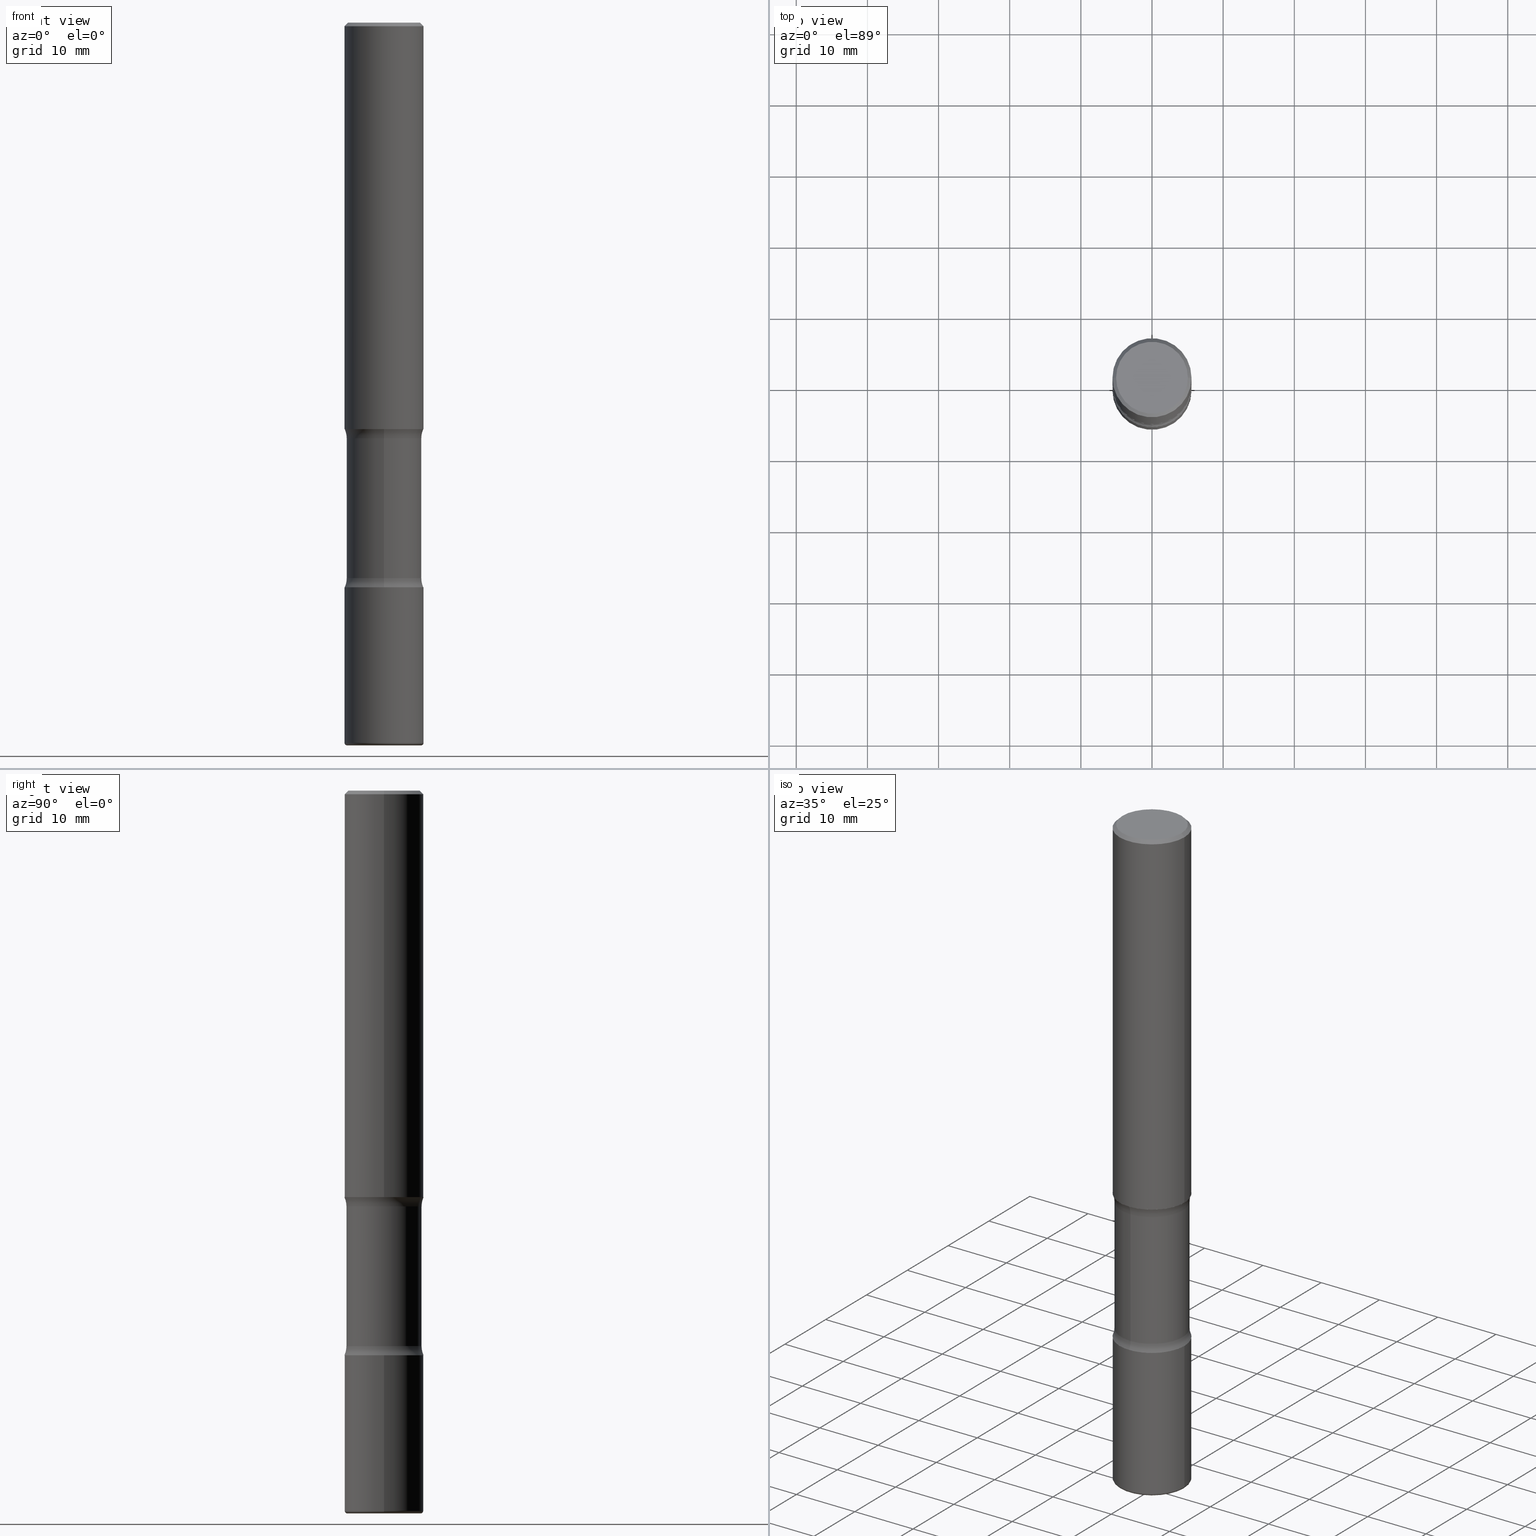
[diagram: canonical four-view strip — front | top / right | iso, engineering-drawing reading convention]
A machine part, canonical four-view strip (front | top / right | iso — engineering-drawing reading convention). The complete STEP part file that produces these views, byte-faithful:
ISO-10303-21;
HEADER;
FILE_DESCRIPTION (( 'STEP AP203' ),
    '1' );
FILE_NAME ('37860.STEP',
    '2024-03-02T00:51:16',
    ( '' ),
    ( '' ),
    'SwSTEP 2.0',
    'SolidWorks 2023',
    '' );
FILE_SCHEMA (( 'CONFIG_CONTROL_DESIGN' ));
ENDSEC;

DATA;
#1 = ORIENTED_EDGE ( 'NONE', *, *, #491, .F. ) ;
#2 = VERTEX_POINT ( 'NONE', #367 ) ;
#3 = AXIS2_PLACEMENT_3D ( 'NONE', #550, #346, #181 ) ;
#4 = CC_DESIGN_APPROVAL ( #130, ( #373 ) ) ;
#5 = DIRECTION ( 'NONE',  ( 1.000000000000000000, -6.982962677686265922E-15, 0.000000000000000000 ) ) ;
#6 = DIRECTION ( 'NONE',  ( 2.445468806185136597E-29, -3.491481338843145583E-15, -1.000000000000000000 ) ) ;
#7 = CARTESIAN_POINT ( 'NONE',  ( -1.463215588587155192E-15, -0.2078125000000081712, -2.301134588037354156 ) ) ;
#8 = LINE ( 'NONE', #347, #262 ) ;
#9 = CIRCLE ( 'NONE', #200, 0.2187499999999998890 ) ;
#10 = AXIS2_PLACEMENT_3D ( 'NONE', #358, #442, #151 ) ;
#11 = EDGE_CURVE ( 'NONE', #456, #557, #138, .T. ) ;
#12 = PRODUCT ( '37860', '37860', '', ( #100 ) ) ;
#13 = DIRECTION ( 'NONE',  ( -2.445468806185136877E-29, 3.491481338843145188E-15, 1.000000000000000000 ) ) ;
#14 = CARTESIAN_POINT ( 'NONE',  ( 7.642090019328550744E-29, -1.091087918388482645E-14, -3.124999999999999112 ) ) ;
#15 = ORIENTED_EDGE ( 'NONE', *, *, #327, .F. ) ;
#16 = DIRECTION ( 'NONE',  ( -1.000000000000000000, 6.982962677686265922E-15, -4.883557194083112340E-29 ) ) ;
#17 = PERSON ( 'UNSPECIFIED', 'UNSPECIFIED', 'UNSPECIFIED', ('UNSPECIFIED'), ('UNSPECIFIED'), ('UNSPECIFIED') ) ;
#18 = DIRECTION ( 'NONE',  ( 2.542508401758147997E-29, -3.352515114831814446E-15, -1.000000000000000000 ) ) ;
#19 = DATE_AND_TIME ( #237, #300 ) ;
#20 = CIRCLE ( 'NONE', #468, 0.01500000000000035159 ) ;
#21 = CIRCLE ( 'NONE', #147, 0.2187500000000000833 ) ;
#22 = DIRECTION ( 'NONE',  ( 1.000000000000000000, -6.982962677686269077E-15, 0.000000000000000000 ) ) ;
#23 = ORIENTED_EDGE ( 'NONE', *, *, #472, .T. ) ;
#24 = PERSON_AND_ORGANIZATION_ROLE ( 'design_owner' ) ;
#25 = VERTEX_POINT ( 'NONE', #35 ) ;
#26 = CARTESIAN_POINT ( 'NONE',  ( 0.2187499999999998890, -1.570563563789384841E-15, -0.02000000000000006981 ) ) ;
#27 = VERTEX_POINT ( 'NONE', #500 ) ;
#28 = LINE ( 'NONE', #26, #390 ) ;
#29 = CIRCLE ( 'NONE', #539, 0.1987499999999998157 ) ;
#30 = AXIS2_PLACEMENT_3D ( 'NONE', #284, #115, #233 ) ;
#31 = ORIENTED_EDGE ( 'NONE', *, *, #90, .T. ) ;
#32 = ORIENTED_EDGE ( 'NONE', *, *, #77, .F. ) ;
#33 = DIRECTION ( 'NONE',  ( -2.445468806185136597E-29, 3.491481338843145583E-15, 1.000000000000000000 ) ) ;
#34 = PERSON_AND_ORGANIZATION_ROLE ( 'classification_officer' ) ;
#35 = CARTESIAN_POINT ( 'NONE',  ( -0.2037500000000001810, -1.243871771603804148E-14, -4.000000000000000000 ) ) ;
#36 = PERSON_AND_ORGANIZATION ( #17, #192 ) ;
#37 = AXIS2_PLACEMENT_3D ( 'NONE', #459, #33, #255 ) ;
#38 = TOROIDAL_SURFACE ( 'NONE', #10, 0.3328125000000000666, 0.1250000000000000555 ) ;
#39 = ORIENTED_EDGE ( 'NONE', *, *, #544, .F. ) ;
#40 = DIRECTION ( 'NONE',  ( 1.000000000000000000, -6.860497997771530774E-15, 4.842500725038393941E-29 ) ) ;
#41 = ORIENTED_EDGE ( 'NONE', *, *, #449, .F. ) ;
#42 = CYLINDRICAL_SURFACE ( 'NONE', #352, 0.2187500000000001665 ) ;
#43 = PLANE ( 'NONE',  #337 ) ;
#44 = CONICAL_SURFACE ( 'NONE', #528, 0.2187499999999998890, 0.7853981633974480570 ) ;
#45 = DIRECTION ( 'NONE',  ( -2.445468806185136597E-29, 3.491481338843145583E-15, 1.000000000000000000 ) ) ;
#46 = CIRCLE ( 'NONE', #221, 0.2187500000000001943 ) ;
#47 = APPROVAL_PERSON_ORGANIZATION ( #273, #130, #224 ) ;
#48 = DIRECTION ( 'NONE',  ( 2.542508401758147997E-29, -3.352515114831814446E-15, -1.000000000000000000 ) ) ;
#49 = DIRECTION ( 'NONE',  ( 1.000000000000000000, -6.982962677686265922E-15, 4.876176775795935793E-29 ) ) ;
#50 = ORIENTED_EDGE ( 'NONE', *, *, #137, .T. ) ;
#51 = PERSON_AND_ORGANIZATION ( #17, #192 ) ;
#52 = CARTESIAN_POINT ( 'NONE',  ( 0.2187500000000001943, -1.243840226962869808E-14, -3.124999999999999112 ) ) ;
#53 = DIRECTION ( 'NONE',  ( -2.445468806185136597E-29, 3.491481338843145583E-15, 1.000000000000000000 ) ) ;
#54 = DIRECTION ( 'NONE',  ( 7.105427357601001859E-15, 1.000000000000000000, -3.491481338843145583E-15 ) ) ;
#55 = EDGE_LOOP ( 'NONE', ( #295, #535 ) ) ;
#56 = AXIS2_PLACEMENT_3D ( 'NONE', #80, #359, #252 ) ;
#57 = APPROVAL_STATUS ( 'not_yet_approved' ) ;
#58 = AXIS2_PLACEMENT_3D ( 'NONE', #194, #541, #281 ) ;
#59 = AXIS2_PLACEMENT_3D ( 'NONE', #403, #320, #533 ) ;
#60 = ADVANCED_FACE ( 'NONE', ( #66 ), #518, .F. ) ;
#61 = ORIENTED_EDGE ( 'NONE', *, *, #327, .T. ) ;
#62 = DIRECTION ( 'NONE',  ( 1.000000000000000000, -6.982962677686265922E-15, 0.000000000000000000 ) ) ;
#63 = APPROVAL_ROLE ( '' ) ;
#64 = CC_DESIGN_DATE_AND_TIME_ASSIGNMENT ( #548, #158, ( #104 ) ) ;
#65 = EDGE_CURVE ( 'NONE', #27, #163, #448, .T. ) ;
#66 = FACE_OUTER_BOUND ( 'NONE', #413, .T. ) ;
#67 = CIRCLE ( 'NONE', #58, 0.2187500000000001943 ) ;
#68 = CC_DESIGN_APPROVAL ( #259, ( #274 ) ) ;
#69 = PRODUCT_RELATED_PRODUCT_CATEGORY ( 'detail', '', ( #12 ) ) ;
#70 = EDGE_CURVE ( 'NONE', #25, #92, #20, .T. ) ;
#71 = CC_DESIGN_PERSON_AND_ORGANIZATION_ASSIGNMENT ( #36, #76, ( #373 ) ) ;
#72 = CARTESIAN_POINT ( 'NONE',  ( 7.517041979366069235E-29, -1.073234372398296787E-14, -3.073865411962643623 ) ) ;
#73 = ORIENTED_EDGE ( 'NONE', *, *, #261, .F. ) ;
#74 = CARTESIAN_POINT ( 'NONE',  ( -1.463215588587134090E-15, -0.2078125000000107248, -3.073865411962643179 ) ) ;
#75 = DIRECTION ( 'NONE',  ( -2.438088387897960049E-29, 3.491481338843145188E-15, 1.000000000000000000 ) ) ;
#76 = PERSON_AND_ORGANIZATION_ROLE ( 'creator' ) ;
#77 = EDGE_CURVE ( 'NONE', #454, #2, #446, .T. ) ;
#78 = CARTESIAN_POINT ( 'NONE',  ( 0.000000000000000000, 0.000000000000000000, 0.000000000000000000 ) ) ;
#79 = AXIS2_PLACEMENT_3D ( 'NONE', #239, #217, #93 ) ;
#80 = CARTESIAN_POINT ( 'NONE',  ( 7.642090019328550744E-29, -1.091087918388482645E-14, -3.124999999999999112 ) ) ;
#81 = CARTESIAN_POINT ( 'NONE',  ( -0.2187500000000003331, -1.235924090081471176E-14, -3.984999999999998987 ) ) ;
#82 = ORIENTED_EDGE ( 'NONE', *, *, #77, .T. ) ;
#83 = CARTESIAN_POINT ( 'NONE',  ( 9.745193192647766827E-29, -1.391355313528993249E-14, -3.984999999999998987 ) ) ;
#84 = VERTEX_POINT ( 'NONE', #507 ) ;
#85 = AXIS2_PLACEMENT_3D ( 'NONE', #72, #248, #88 ) ;
#86 = CC_DESIGN_DATE_AND_TIME_ASSIGNMENT ( #314, #482, ( #274 ) ) ;
#87 = DIRECTION ( 'NONE',  ( 1.000000000000000000, -6.860497997771530774E-15, 4.842500725038393941E-29 ) ) ;
#88 = DIRECTION ( 'NONE',  ( 6.982962677686265922E-15, 1.000000000000000000, -3.352515114831814446E-15 ) ) ;
#89 = ORIENTED_EDGE ( 'NONE', *, *, #315, .T. ) ;
#90 = EDGE_CURVE ( 'NONE', #470, #266, #538, .T. ) ;
#91 = DIRECTION ( 'NONE',  ( 2.542508401758147997E-29, -3.352515114831814446E-15, -1.000000000000000000 ) ) ;
#92 = VERTEX_POINT ( 'NONE', #81 ) ;
#93 = DIRECTION ( 'NONE',  ( 1.000000000000000000, -6.982962677686271444E-15, 4.883557194083114583E-29 ) ) ;
#94 = DIRECTION ( 'NONE',  ( 1.000000000000000000, -6.982962677686265922E-15, 0.000000000000000000 ) ) ;
#95 = FACE_OUTER_BOUND ( 'NONE', #196, .T. ) ;
#96 = TOROIDAL_SURFACE ( 'NONE', #85, 0.3328125000000000666, 0.1250000000000000555 ) ;
#97 = DIRECTION ( 'NONE',  ( -2.445468806185136877E-29, 3.491481338843145188E-15, 1.000000000000000000 ) ) ;
#98 = DIRECTION ( 'NONE',  ( 1.000000000000000000, -6.982962677686266711E-15, 4.876176775795936353E-29 ) ) ;
#99 = ADVANCED_FACE ( 'NONE', ( #253 ), #205, .T. ) ;
#100 = MECHANICAL_CONTEXT ( 'NONE', #186, 'mechanical' ) ;
#101 = CLOSED_SHELL ( 'NONE', ( #122, #366, #516, #355, #397, #331 ) ) ;
#102 = CALENDAR_DATE ( 2024, 1, 3 ) ;
#103 = AXIS2_PLACEMENT_3D ( 'NONE', #319, #497, #553 ) ;
#104 = SECURITY_CLASSIFICATION ( '', '', #302 ) ;
#105 = FACE_OUTER_BOUND ( 'NONE', #486, .T. ) ;
#106 = CYLINDRICAL_SURFACE ( 'NONE', #480, 0.2078125000000000111 ) ;
#107 = DIRECTION ( 'NONE',  ( -1.000000000000000000, 6.982962677686265922E-15, -4.876176775795935793E-29 ) ) ;
#108 = FACE_OUTER_BOUND ( 'NONE', #438, .T. ) ;
#109 = ORIENTED_EDGE ( 'NONE', *, *, #389, .F. ) ;
#110 = DIRECTION ( 'NONE',  ( 2.542508401758147997E-29, -3.352515114831814446E-15, -1.000000000000000000 ) ) ;
#111 =( CONVERSION_BASED_UNIT ( 'INCH', #534 ) LENGTH_UNIT ( ) NAMED_UNIT ( #305 ) );
#112 = EDGE_LOOP ( 'NONE', ( #197, #82, #23, #374 ) ) ;
#113 = CIRCLE ( 'NONE', #114, 0.2078125000000000389 ) ;
#114 = AXIS2_PLACEMENT_3D ( 'NONE', #218, #91, #174 ) ;
#115 = DIRECTION ( 'NONE',  ( -2.445468806185136597E-29, 3.491481338843145583E-15, 1.000000000000000000 ) ) ;
#116 = CIRCLE ( 'NONE', #3, 0.2187499999999998890 ) ;
#117 = DIRECTION ( 'NONE',  ( 2.542508401758147997E-29, -3.352515114831814446E-15, -1.000000000000000000 ) ) ;
#118 = EDGE_CURVE ( 'NONE', #401, #228, #460, .T. ) ;
#119 = COORDINATED_UNIVERSAL_TIME_OFFSET ( 5, 0, .BEHIND. ) ;
#120 = ORIENTED_EDGE ( 'NONE', *, *, #152, .T. ) ;
#121 = DIRECTION ( 'NONE',  ( -2.445468806185136597E-29, 3.491481338843145583E-15, 1.000000000000000000 ) ) ;
#122 = ADVANCED_FACE ( 'NONE', ( #128 ), #204, .T. ) ;
#123 = ORIENTED_EDGE ( 'NONE', *, *, #537, .F. ) ;
#124 = TOROIDAL_SURFACE ( 'NONE', #330, 0.3328124999999999556, 0.1250000000000000278 ) ;
#125 = CIRCLE ( 'NONE', #558, 0.2187500000000002498 ) ;
#126 = ORIENTED_EDGE ( 'NONE', *, *, #389, .T. ) ;
#127 = ADVANCED_FACE ( 'NONE', ( #525 ), #44, .T. ) ;
#128 = FACE_OUTER_BOUND ( 'NONE', #540, .T. ) ;
#129 = ORIENTED_EDGE ( 'NONE', *, *, #430, .T. ) ;
#130 = APPROVAL ( #57, 'UNSPECIFIED' ) ;
#131 = CIRCLE ( 'NONE', #471, 0.1250000000000000278 ) ;
#132 = ORIENTED_EDGE ( 'NONE', *, *, #157, .T. ) ;
#133 = DIRECTION ( 'NONE',  ( -1.000000000000000000, 6.982962677686265922E-15, -4.876176775795935793E-29 ) ) ;
#134 = ORIENTED_EDGE ( 'NONE', *, *, #472, .F. ) ;
#135 = ORIENTED_EDGE ( 'NONE', *, *, #280, .T. ) ;
#136 = DIRECTION ( 'NONE',  ( 6.982962677686265922E-15, 1.000000000000000000, -3.746534391310985612E-15 ) ) ;
#137 = EDGE_CURVE ( 'NONE', #84, #454, #113, .T. ) ;
#138 = CIRCLE ( 'NONE', #56, 0.2187500000000001943 ) ;
#139 = AXIS2_PLACEMENT_3D ( 'NONE', #198, #16, #318 ) ;
#140 = EDGE_LOOP ( 'NONE', ( #356, #134 ) ) ;
#141 = DIRECTION ( 'NONE',  ( 1.000000000000000000, -6.982962677686266711E-15, 0.000000000000000000 ) ) ;
#142 = DIRECTION ( 'NONE',  ( -0.7071067811865473507, 2.468850131082255088E-15, -0.7071067811865476838 ) ) ;
#143 = FACE_OUTER_BOUND ( 'NONE', #169, .T. ) ;
#144 = CC_DESIGN_PERSON_AND_ORGANIZATION_ASSIGNMENT ( #490, #24, ( #12 ) ) ;
#145 = EDGE_LOOP ( 'NONE', ( #73, #336, #476, #156 ) ) ;
#146 = ORIENTED_EDGE ( 'NONE', *, *, #301, .F. ) ;
#147 = AXIS2_PLACEMENT_3D ( 'NONE', #493, #159, #22 ) ;
#148 = ORIENTED_EDGE ( 'NONE', *, *, #65, .T. ) ;
#149 = CARTESIAN_POINT ( 'NONE',  ( 7.642090019328550744E-29, -1.091087918388482645E-14, -3.124999999999999112 ) ) ;
#150 = PERSON_AND_ORGANIZATION_ROLE ( 'creator' ) ;
#151 = DIRECTION ( 'NONE',  ( 6.982962677686265922E-15, 1.000000000000000000, -3.352515114831814446E-15 ) ) ;
#152 = EDGE_CURVE ( 'NONE', #453, #25, #417, .T. ) ;
#153 = APPROVAL_DATE_TIME ( #452, #393 ) ;
#154 = DIRECTION ( 'NONE',  ( -6.982962677686266711E-15, -1.000000000000000000, 3.491481338843145583E-15 ) ) ;
#155 = AXIS2_PLACEMENT_3D ( 'NONE', #344, #554, #495 ) ;
#156 = ORIENTED_EDGE ( 'NONE', *, *, #315, .F. ) ;
#157 = EDGE_CURVE ( 'NONE', #25, #453, #277, .T. ) ;
#158 = DATE_TIME_ROLE ( 'classification_date' ) ;
#159 = DIRECTION ( 'NONE',  ( -2.445468806185136597E-29, 3.491481338843145583E-15, 1.000000000000000000 ) ) ;
#160 = EDGE_CURVE ( 'NONE', #92, #232, #8, .T. ) ;
#161 = DIRECTION ( 'NONE',  ( -2.445468806185136597E-29, 3.491481338843145583E-15, 1.000000000000000000 ) ) ;
#162 = DATE_AND_TIME ( #230, #203 ) ;
#163 = VERTEX_POINT ( 'NONE', #177 ) ;
#164 = DIRECTION ( 'NONE',  ( 1.000000000000000000, -6.982962677686233578E-15, 0.000000000000000000 ) ) ;
#165 = CIRCLE ( 'NONE', #371, 0.2187500000000001388 ) ;
#166 = ORIENTED_EDGE ( 'NONE', *, *, #187, .T. ) ;
#167 = ORIENTED_EDGE ( 'NONE', *, *, #449, .T. ) ;
#168 = EDGE_CURVE ( 'NONE', #228, #163, #9, .T. ) ;
#169 = EDGE_LOOP ( 'NONE', ( #213, #126 ) ) ;
#170 = CARTESIAN_POINT ( 'NONE',  ( 5.417395167790170756E-29, -7.977428458406990284E-15, -2.249999999999999556 ) ) ;
#171 = AXIS2_PLACEMENT_3D ( 'NONE', #496, #386, #375 ) ;
#172 = EDGE_CURVE ( 'NONE', #27, #240, #29, .T. ) ;
#173 = CC_DESIGN_PERSON_AND_ORGANIZATION_ASSIGNMENT ( #405, #545, ( #373 ) ) ;
#174 = DIRECTION ( 'NONE',  ( 6.982962677686265133E-15, 1.000000000000000000, -3.943720411906303717E-15 ) ) ;
#175 = EDGE_CURVE ( 'NONE', #401, #384, #165, .T. ) ;
#176 = AXIS2_PLACEMENT_3D ( 'NONE', #343, #523, #5 ) ;
#177 = CARTESIAN_POINT ( 'NONE',  ( -0.2187499999999998890, 1.457693458967006953E-15, -0.02000000000000006981 ) ) ;
#178 = TOROIDAL_SURFACE ( 'NONE', #420, 0.2037500000000002087, 0.01500000000000033598 ) ;
#179 = ORIENTED_EDGE ( 'NONE', *, *, #11, .T. ) ;
#180 = CIRCLE ( 'NONE', #30, 0.1987499999999998157 ) ;
#181 = DIRECTION ( 'NONE',  ( 1.000000000000000000, -6.982962677686266711E-15, 0.000000000000000000 ) ) ;
#182 = DIRECTION ( 'NONE',  ( 0.000000000000000000, 0.000000000000000000, 1.000000000000000000 ) ) ;
#183 = APPROVAL_PERSON_ORGANIZATION ( #316, #259, #63 ) ;
#184 = CC_DESIGN_PERSON_AND_ORGANIZATION_ASSIGNMENT ( #51, #150, ( #274 ) ) ;
#185 = DIRECTION ( 'NONE',  ( 2.445468806185136597E-29, -3.491481338843145583E-15, -1.000000000000000000 ) ) ;
#186 = APPLICATION_CONTEXT ( 'configuration controlled 3d designs of mechanical parts and assemblies' ) ;
#187 = EDGE_CURVE ( 'NONE', #163, #228, #116, .T. ) ;
#188 = VERTEX_POINT ( 'NONE', #526 ) ;
#189 = CARTESIAN_POINT ( 'NONE',  ( 0.2187500000000003331, -1.544107622103380570E-14, -3.984999999999998987 ) ) ;
#190 = DIRECTION ( 'NONE',  ( 2.542508401758147997E-29, -3.352515114831814446E-15, -1.000000000000000000 ) ) ;
#191 = AXIS2_PLACEMENT_3D ( 'NONE', #426, #220, #382 ) ;
#192 = ORGANIZATION ( 'UNSPECIFIED', 'UNSPECIFIED', '' ) ;
#193 = ORIENTED_EDGE ( 'NONE', *, *, #70, .F. ) ;
#194 = CARTESIAN_POINT ( 'NONE',  ( 7.642090019328550744E-29, -1.091087918388482645E-14, -3.124999999999999112 ) ) ;
#195 = APPLICATION_PROTOCOL_DEFINITION ( 'international standard', 'config_control_design', 1994, #478 ) ;
#196 = EDGE_LOOP ( 'NONE', ( #285, #234, #422, #39 ) ) ;
#197 = ORIENTED_EDGE ( 'NONE', *, *, #334, .F. ) ;
#198 = CARTESIAN_POINT ( 'NONE',  ( 2.324017266167535779E-15, 0.3328124999999892975, -3.073865411962644956 ) ) ;
#199 = APPROVAL_STATUS ( 'not_yet_approved' ) ;
#200 = AXIS2_PLACEMENT_3D ( 'NONE', #350, #531, #141 ) ;
#201 = AXIS2_PLACEMENT_3D ( 'NONE', #272, #522, #133 ) ;
#202 = ORIENTED_EDGE ( 'NONE', *, *, #157, .F. ) ;
#203 = LOCAL_TIME ( 19, 51, 16.00000000000000000, #387 ) ;
#204 = CYLINDRICAL_SURFACE ( 'NONE', #37, 0.2187500000000001665 ) ;
#205 = CYLINDRICAL_SURFACE ( 'NONE', #292, 0.2187500000000000278 ) ;
#206 = FACE_OUTER_BOUND ( 'NONE', #246, .T. ) ;
#207 = EDGE_LOOP ( 'NONE', ( #179, #307 ) ) ;
#208 = ORIENTED_EDGE ( 'NONE', *, *, #348, .F. ) ;
#209 = APPROVAL_PERSON_ORGANIZATION ( #508, #393, #555 ) ;
#210 = ORIENTED_EDGE ( 'NONE', *, *, #137, .F. ) ;
#211 = DIRECTION ( 'NONE',  ( 2.542508401758147997E-29, -3.352515114831814446E-15, -1.000000000000000000 ) ) ;
#212 = DIRECTION ( 'NONE',  ( 6.982962677686265133E-15, 1.000000000000000000, -2.629146941270869802E-15 ) ) ;
#213 = ORIENTED_EDGE ( 'NONE', *, *, #172, .T. ) ;
#214 = CARTESIAN_POINT ( 'NONE',  ( -2.283259489883262433E-15, -0.3328125000000107803, -3.073865411962642735 ) ) ;
#215 = PRODUCT_DEFINITION_SHAPE ( 'NONE', 'NONE',  #274 ) ;
#216 = ADVANCED_FACE ( 'NONE', ( #143 ), #329, .F. ) ;
#217 = DIRECTION ( 'NONE',  ( -2.445468806185136597E-29, 3.491481338843145583E-15, 1.000000000000000000 ) ) ;
#218 = CARTESIAN_POINT ( 'NONE',  ( 5.547405287495589114E-29, -8.148857937692923452E-15, -2.301134588037355044 ) ) ;
#219 = PLANE ( 'NONE',  #103 ) ;
#220 = DIRECTION ( 'NONE',  ( 2.542508401758147997E-29, -3.352515114831814446E-15, -1.000000000000000000 ) ) ;
#221 = AXIS2_PLACEMENT_3D ( 'NONE', #149, #18, #444 ) ;
#222 =( GEOMETRIC_REPRESENTATION_CONTEXT ( 3 ) GLOBAL_UNCERTAINTY_ASSIGNED_CONTEXT ( ( #294 ) ) GLOBAL_UNIT_ASSIGNED_CONTEXT ( ( #111, #242, #399 ) ) REPRESENTATION_CONTEXT ( 'NONE', 'WORKASPACE' ) );
#223 = ORIENTED_EDGE ( 'NONE', *, *, #187, .F. ) ;
#224 = APPROVAL_ROLE ( '' ) ;
#225 = VECTOR ( 'NONE', #370, 39.37007874015748143 ) ;
#226 = DIRECTION ( 'NONE',  ( -1.000000000000000000, 7.105427357600953738E-15, 0.000000000000000000 ) ) ;
#227 = CIRCLE ( 'NONE', #139, 0.1250000000000000278 ) ;
#228 = VERTEX_POINT ( 'NONE', #351 ) ;
#229 = CARTESIAN_POINT ( 'NONE',  ( 4.890937612370289799E-31, -6.982962677686315028E-17, -0.02000000000000006981 ) ) ;
#230 = CALENDAR_DATE ( 2024, 1, 3 ) ;
#231 = EDGE_CURVE ( 'NONE', #240, #228, #28, .T. ) ;
#232 = VERTEX_POINT ( 'NONE', #404 ) ;
#233 = DIRECTION ( 'NONE',  ( 1.000000000000000000, -6.982962677686266711E-15, 4.876176775795936353E-29 ) ) ;
#234 = ORIENTED_EDGE ( 'NONE', *, *, #491, .T. ) ;
#235 = APPLICATION_PROTOCOL_DEFINITION ( 'international standard', 'config_control_design', 1994, #186 ) ;
#236 = DIRECTION ( 'NONE',  ( 0.7071067811865473507, -7.319954787623256045E-15, -0.7071067811865476838 ) ) ;
#237 = CALENDAR_DATE ( 2024, 1, 3 ) ;
#238 = ORIENTED_EDGE ( 'NONE', *, *, #11, .F. ) ;
#239 = CARTESIAN_POINT ( 'NONE',  ( 9.745193192647766827E-29, -1.391355313528993249E-14, -3.984999999999998987 ) ) ;
#240 = VERTEX_POINT ( 'NONE', #398 ) ;
#241 = CLOSED_SHELL ( 'NONE', ( #99, #408, #127, #216, #418, #313 ) ) ;
#242 =( NAMED_UNIT ( * ) PLANE_ANGLE_UNIT ( ) SI_UNIT ( $, .RADIAN. ) );
#243 = CIRCLE ( 'NONE', #191, 0.2078125000000000389 ) ;
#244 = LOCAL_TIME ( 19, 51, 16.00000000000000000, #254 ) ;
#245 = FACE_OUTER_BOUND ( 'NONE', #145, .T. ) ;
#246 = EDGE_LOOP ( 'NONE', ( #515, #238, #89, #31 ) ) ;
#247 = DIRECTION ( 'NONE',  ( 1.000000000000000000, -6.982962677686266711E-15, 4.876176775795935232E-29 ) ) ;
#248 = DIRECTION ( 'NONE',  ( 2.542508401758147997E-29, -3.352515114831814446E-15, -1.000000000000000000 ) ) ;
#249 = DIRECTION ( 'NONE',  ( 6.982962677686265922E-15, 1.000000000000000000, -3.352515114831814446E-15 ) ) ;
#250 = AXIS2_PLACEMENT_3D ( 'NONE', #229, #185, #437 ) ;
#251 = LOCAL_TIME ( 19, 51, 16.00000000000000000, #311 ) ;
#252 = DIRECTION ( 'NONE',  ( 6.982962677686265922E-15, 1.000000000000000000, -2.497689594207324005E-15 ) ) ;
#253 = FACE_OUTER_BOUND ( 'NONE', #556, .T. ) ;
#254 = COORDINATED_UNIVERSAL_TIME_OFFSET ( 5, 0, .BEHIND. ) ;
#255 = DIRECTION ( 'NONE',  ( 1.000000000000000000, -6.982962677686266711E-15, 4.876176775795935793E-29 ) ) ;
#256 = CARTESIAN_POINT ( 'NONE',  ( 0.000000000000000000, 0.000000000000000000, 0.000000000000000000 ) ) ;
#257 = CALENDAR_DATE ( 2024, 1, 3 ) ;
#258 = ORIENTED_EDGE ( 'NONE', *, *, #439, .T. ) ;
#259 = APPROVAL ( #441, 'UNSPECIFIED' ) ;
#260 = EDGE_LOOP ( 'NONE', ( #517, #436, #148, #166 ) ) ;
#261 = EDGE_CURVE ( 'NONE', #557, #456, #46, .T. ) ;
#262 = VECTOR ( 'NONE', #97, 39.37007874015748143 ) ;
#263 = VECTOR ( 'NONE', #13, 39.37007874015748143 ) ;
#264 = DIRECTION ( 'NONE',  ( 6.982962677686265922E-15, 1.000000000000000000, -3.352515114831814446E-15 ) ) ;
#265 = CARTESIAN_POINT ( 'NONE',  ( 4.890937612370289799E-31, -6.982962677686315028E-17, -0.02000000000000006981 ) ) ;
#266 = VERTEX_POINT ( 'NONE', #74 ) ;
#267 = CARTESIAN_POINT ( 'NONE',  ( 9.781875224740546387E-29, -1.396592535537258233E-14, -4.000000000000000000 ) ) ;
#268 = ORIENTED_EDGE ( 'NONE', *, *, #70, .T. ) ;
#269 = AXIS2_PLACEMENT_3D ( 'NONE', #170, #345, #136 ) ;
#270 = CYLINDRICAL_SURFACE ( 'NONE', #381, 0.2078125000000000111 ) ;
#271 = CARTESIAN_POINT ( 'NONE',  ( 5.579661872426862939E-29, -8.102664672140540691E-15, -2.301134588037355044 ) ) ;
#272 = CARTESIAN_POINT ( 'NONE',  ( 1.309248789957701946E-28, -3.105599201986939029E-15, -3.124999999999999112 ) ) ;
#273 = PERSON_AND_ORGANIZATION ( #17, #192 ) ;
#274 = PRODUCT_DEFINITION ( 'UNKNOWN', '', #373, #406 ) ;
#275 = ORIENTED_EDGE ( 'NONE', *, *, #65, .F. ) ;
#276 = PLANE ( 'NONE',  #59 ) ;
#277 = CIRCLE ( 'NONE', #501, 0.2037500000000001810 ) ;
#278 = TOROIDAL_SURFACE ( 'NONE', #79, 0.2037500000000002087, 0.01500000000000033598 ) ;
#279 = DIRECTION ( 'NONE',  ( 2.542508401758147997E-29, -3.352515114831814446E-15, -1.000000000000000000 ) ) ;
#280 = EDGE_CURVE ( 'NONE', #454, #266, #332, .T. ) ;
#281 = DIRECTION ( 'NONE',  ( 1.000000000000000000, -6.982962677686265922E-15, 0.000000000000000000 ) ) ;
#282 = FACE_OUTER_BOUND ( 'NONE', #207, .T. ) ;
#283 = ORIENTED_EDGE ( 'NONE', *, *, #388, .F. ) ;
#284 = CARTESIAN_POINT ( 'NONE',  ( 0.000000000000000000, 0.000000000000000000, 0.000000000000000000 ) ) ;
#285 = ORIENTED_EDGE ( 'NONE', *, *, #160, .F. ) ;
#286 = MANIFOLD_SOLID_BREP ( 'Body-Move/Copy2[2]', #241 ) ;
#287 = DIRECTION ( 'NONE',  ( -1.000000000000000000, 6.982962677686265922E-15, -4.876176775795935793E-29 ) ) ;
#288 = DIRECTION ( 'NONE',  ( -2.445468806185136597E-29, 3.491481338843145583E-15, 1.000000000000000000 ) ) ;
#289 = FACE_OUTER_BOUND ( 'NONE', #55, .T. ) ;
#290 = CARTESIAN_POINT ( 'NONE',  ( 9.781875224740546387E-29, -1.396592535537258233E-14, -4.000000000000000000 ) ) ;
#291 = DIRECTION ( 'NONE',  ( 2.438088387897960049E-29, -3.491481338843145188E-15, -1.000000000000000000 ) ) ;
#292 = AXIS2_PLACEMENT_3D ( 'NONE', #256, #161, #335 ) ;
#293 = CIRCLE ( 'NONE', #171, 0.2187500000000001388 ) ;
#294 = UNCERTAINTY_MEASURE_WITH_UNIT (LENGTH_MEASURE( 1.000000000000000082E-05 ), #111, 'distance_accuracy_value', 'NONE');
#295 = ORIENTED_EDGE ( 'NONE', *, *, #301, .T. ) ;
#296 = ORIENTED_EDGE ( 'NONE', *, *, #231, .T. ) ;
#297 = DIRECTION ( 'NONE',  ( 2.542508401758147997E-29, -3.352515114831814446E-15, -1.000000000000000000 ) ) ;
#298 = CARTESIAN_POINT ( 'NONE',  ( -0.2187500000000001388, -2.408519085111747378E-15, -2.249999999999999556 ) ) ;
#299 = CIRCLE ( 'NONE', #155, 0.1250000000000000278 ) ;
#300 = LOCAL_TIME ( 19, 51, 16.00000000000000000, #395 ) ;
#301 = EDGE_CURVE ( 'NONE', #512, #232, #67, .T. ) ;
#302 = SECURITY_CLASSIFICATION_LEVEL ( 'unclassified' ) ;
#303 = ORIENTED_EDGE ( 'NONE', *, *, #348, .T. ) ;
#304 = DIRECTION ( 'NONE',  ( -2.445468806185136597E-29, 3.491481338843145583E-15, 1.000000000000000000 ) ) ;
#305 = DIMENSIONAL_EXPONENTS ( 1.000000000000000000, 0.000000000000000000, 0.000000000000000000, 0.000000000000000000, 0.000000000000000000, 0.000000000000000000, 0.000000000000000000 ) ;
#306 = AXIS2_PLACEMENT_3D ( 'NONE', #14, #288, #62 ) ;
#307 = ORIENTED_EDGE ( 'NONE', *, *, #261, .T. ) ;
#308 = DIRECTION ( 'NONE',  ( 2.438088387897960049E-29, -3.491481338843145188E-15, -1.000000000000000000 ) ) ;
#309 = CLOSED_SHELL ( 'NONE', ( #324, #492, #464, #60, #425, #551, #477, #360 ) ) ;
#310 = VECTOR ( 'NONE', #530, 39.37007874015748143 ) ;
#311 = COORDINATED_UNIVERSAL_TIME_OFFSET ( 5, 0, .BEHIND. ) ;
#312 = CARTESIAN_POINT ( 'NONE',  ( 0.000000000000000000, 0.000000000000000000, 0.000000000000000000 ) ) ;
#313 = ADVANCED_FACE ( 'NONE', ( #322 ), #506, .T. ) ;
#314 = DATE_AND_TIME ( #102, #251 ) ;
#315 = EDGE_CURVE ( 'NONE', #456, #470, #227, .T. ) ;
#316 = PERSON_AND_ORGANIZATION ( #17, #192 ) ;
#317 = AXIS2_PLACEMENT_3D ( 'NONE', #451, #291, #287 ) ;
#318 = DIRECTION ( 'NONE',  ( -6.982962677686267499E-15, -1.000000000000000000, 0.000000000000000000 ) ) ;
#319 = CARTESIAN_POINT ( 'NONE',  ( 5.502304813916556222E-29, -7.855833012397075293E-15, -2.249999999999999556 ) ) ;
#320 = DIRECTION ( 'NONE',  ( -2.542508401758147437E-29, 3.352515114831814446E-15, 1.000000000000000000 ) ) ;
#321 = DIRECTION ( 'NONE',  ( 1.000000000000000000, -6.982962677686269077E-15, 0.000000000000000000 ) ) ;
#322 = FACE_OUTER_BOUND ( 'NONE', #342, .T. ) ;
#323 = CARTESIAN_POINT ( 'NONE',  ( -1.500733937012446996E-15, -0.2187500000000110745, -3.124999999999998668 ) ) ;
#324 = ADVANCED_FACE ( 'NONE', ( #489 ), #106, .T. ) ;
#325 = EDGE_LOOP ( 'NONE', ( #481, #202 ) ) ;
#326 = CARTESIAN_POINT ( 'NONE',  ( 5.502304813916556222E-29, -7.855833012397075293E-15, -2.249999999999999556 ) ) ;
#327 = EDGE_CURVE ( 'NONE', #384, #163, #391, .T. ) ;
#328 = ORIENTED_EDGE ( 'NONE', *, *, #168, .F. ) ;
#329 = PLANE ( 'NONE',  #317 ) ;
#330 = AXIS2_PLACEMENT_3D ( 'NONE', #271, #211, #264 ) ;
#331 = ADVANCED_FACE ( 'NONE', ( #289 ), #509, .F. ) ;
#332 = LINE ( 'NONE', #363, #520 ) ;
#333 = PERSON_AND_ORGANIZATION ( #17, #192 ) ;
#334 = EDGE_CURVE ( 'NONE', #454, #84, #243, .T. ) ;
#335 = DIRECTION ( 'NONE',  ( 1.000000000000000000, -6.982962677686266711E-15, 4.876176775795935232E-29 ) ) ;
#336 = ORIENTED_EDGE ( 'NONE', *, *, #372, .T. ) ;
#337 = AXIS2_PLACEMENT_3D ( 'NONE', #290, #308, #107 ) ;
#338 = EDGE_LOOP ( 'NONE', ( #120, #268, #208, #466 ) ) ;
#339 = EDGE_CURVE ( 'NONE', #84, #188, #299, .T. ) ;
#340 = CARTESIAN_POINT ( 'NONE',  ( -2.283259489883281366E-15, -0.3328125000000081157, -2.301134588037354156 ) ) ;
#341 = ADVANCED_BREP_SHAPE_REPRESENTATION ( '37860', ( #465, #286, #447, #353 ), #222 ) ;
#342 = EDGE_LOOP ( 'NONE', ( #15, #258, #450, #223 ) ) ;
#343 = CARTESIAN_POINT ( 'NONE',  ( 9.781875224740546387E-29, -1.396592535537258233E-14, -4.000000000000000000 ) ) ;
#344 = CARTESIAN_POINT ( 'NONE',  ( 2.324017266167516057E-15, 0.3328124999999918510, -2.301134588037356377 ) ) ;
#345 = DIRECTION ( 'NONE',  ( 2.542508401758147997E-29, -3.352515114831814446E-15, -1.000000000000000000 ) ) ;
#346 = DIRECTION ( 'NONE',  ( -2.445468806185136597E-29, 3.491481338843145583E-15, 1.000000000000000000 ) ) ;
#347 = CARTESIAN_POINT ( 'NONE',  ( -0.2187500000000001665, 1.554312234475220340E-15, -1.076017050993261463E-29 ) ) ;
#348 = EDGE_CURVE ( 'NONE', #416, #92, #435, .T. ) ;
#349 = AXIS2_PLACEMENT_3D ( 'NONE', #392, #485, #527 ) ;
#350 = CARTESIAN_POINT ( 'NONE',  ( 4.890937612370289799E-31, -6.982962677686315028E-17, -0.02000000000000006981 ) ) ;
#351 = CARTESIAN_POINT ( 'NONE',  ( 0.2187499999999998890, -1.570563563789384841E-15, -0.02000000000000006981 ) ) ;
#352 = AXIS2_PLACEMENT_3D ( 'NONE', #379, #45, #385 ) ;
#353 = AXIS2_PLACEMENT_3D ( 'NONE', #542, #182, #487 ) ;
#354 = CARTESIAN_POINT ( 'NONE',  ( 9.866784870866931853E-29, -1.384432990936266734E-14, -4.000000000000000000 ) ) ;
#355 = ADVANCED_FACE ( 'NONE', ( #428 ), #278, .T. ) ;
#356 = ORIENTED_EDGE ( 'NONE', *, *, #552, .F. ) ;
#357 = SHAPE_DEFINITION_REPRESENTATION ( #215, #341 ) ;
#358 = CARTESIAN_POINT ( 'NONE',  ( 7.517041979366069235E-29, -1.073234372398296787E-14, -3.073865411962643623 ) ) ;
#359 = DIRECTION ( 'NONE',  ( 2.542508401758147997E-29, -3.352515114831814446E-15, -1.000000000000000000 ) ) ;
#360 = ADVANCED_FACE ( 'NONE', ( #108 ), #270, .T. ) ;
#361 = AXIS2_PLACEMENT_3D ( 'NONE', #340, #87, #514 ) ;
#362 = ORIENTED_EDGE ( 'NONE', *, *, #175, .F. ) ;
#363 = CARTESIAN_POINT ( 'NONE',  ( -1.425697240161797519E-15, -0.2078125000000138334, -3.999999999999999556 ) ) ;
#364 = AXIS2_PLACEMENT_3D ( 'NONE', #78, #121, #247 ) ;
#365 = LOCAL_TIME ( 19, 51, 16.00000000000000000, #119 ) ;
#366 = ADVANCED_FACE ( 'NONE', ( #423 ), #178, .T. ) ;
#367 = CARTESIAN_POINT ( 'NONE',  ( -1.500733937012469676E-15, -0.2187500000000082157, -2.249999999999998668 ) ) ;
#368 = ORIENTED_EDGE ( 'NONE', *, *, #160, .T. ) ;
#369 = LINE ( 'NONE', #559, #488 ) ;
#370 = DIRECTION ( 'NONE',  ( -2.445468806185136877E-29, 3.491481338843145188E-15, 1.000000000000000000 ) ) ;
#371 = AXIS2_PLACEMENT_3D ( 'NONE', #432, #53, #536 ) ;
#372 = EDGE_CURVE ( 'NONE', #557, #266, #131, .T. ) ;
#373 = PRODUCT_DEFINITION_FORMATION_WITH_SPECIFIED_SOURCE ( 'ANY', '', #12, .NOT_KNOWN. ) ;
#374 = ORIENTED_EDGE ( 'NONE', *, *, #339, .F. ) ;
#375 = DIRECTION ( 'NONE',  ( 1.000000000000000000, -6.982962677686263555E-15, 0.000000000000000000 ) ) ;
#376 = CARTESIAN_POINT ( 'NONE',  ( 1.451146931456752440E-15, 0.2078124999999892975, -3.073865411962644068 ) ) ;
#377 = ORIENTED_EDGE ( 'NONE', *, *, #280, .F. ) ;
#378 = ORIENTED_EDGE ( 'NONE', *, *, #118, .F. ) ;
#379 = CARTESIAN_POINT ( 'NONE',  ( 0.000000000000000000, 0.000000000000000000, 0.000000000000000000 ) ) ;
#380 = AXIS2_PLACEMENT_3D ( 'NONE', #504, #117, #249 ) ;
#381 = AXIS2_PLACEMENT_3D ( 'NONE', #427, #48, #212 ) ;
#382 = DIRECTION ( 'NONE',  ( 6.982962677686265133E-15, 1.000000000000000000, -3.943720411906303717E-15 ) ) ;
#383 = CARTESIAN_POINT ( 'NONE',  ( 0.2037500000000001810, -1.538870400095115901E-14, -4.000000000000000000 ) ) ;
#384 = VERTEX_POINT ( 'NONE', #298 ) ;
#385 = DIRECTION ( 'NONE',  ( 1.000000000000000000, -6.982962677686266711E-15, 4.876176775795935793E-29 ) ) ;
#386 = DIRECTION ( 'NONE',  ( -2.445468806185136597E-29, 3.491481338843145583E-15, 1.000000000000000000 ) ) ;
#387 = COORDINATED_UNIVERSAL_TIME_OFFSET ( 5, 0, .BEHIND. ) ;
#388 = EDGE_CURVE ( 'NONE', #416, #512, #462, .T. ) ;
#389 = EDGE_CURVE ( 'NONE', #240, #27, #180, .T. ) ;
#390 = VECTOR ( 'NONE', #236, 39.37007874015748143 ) ;
#391 = LINE ( 'NONE', #394, #263 ) ;
#392 = CARTESIAN_POINT ( 'NONE',  ( 7.512079899623131265E-29, -1.073944970459889485E-14, -3.073865411962643623 ) ) ;
#393 = APPROVAL ( #199, 'UNSPECIFIED' ) ;
#394 = CARTESIAN_POINT ( 'NONE',  ( -0.2187500000000000278, 1.554312234475219354E-15, -1.076017050993260762E-29 ) ) ;
#395 = COORDINATED_UNIVERSAL_TIME_OFFSET ( 5, 0, .BEHIND. ) ;
#396 = PLANE ( 'NONE',  #529 ) ;
#397 = ADVANCED_FACE ( 'NONE', ( #95 ), #42, .T. ) ;
#398 = CARTESIAN_POINT ( 'NONE',  ( 0.1987499999999998157, -1.467043770423237861E-15, 9.982525199991778089E-30 ) ) ;
#399 =( NAMED_UNIT ( * ) SI_UNIT ( $, .STERADIAN. ) SOLID_ANGLE_UNIT ( ) );
#400 = CIRCLE ( 'NONE', #349, 0.2078125000000000111 ) ;
#401 = VERTEX_POINT ( 'NONE', #499 ) ;
#402 = CARTESIAN_POINT ( 'NONE',  ( 9.745193192647766827E-29, -1.391355313528993249E-14, -3.984999999999998987 ) ) ;
#403 = CARTESIAN_POINT ( 'NONE',  ( 1.309248789957701946E-28, -3.105599201986939029E-15, -3.124999999999999112 ) ) ;
#404 = CARTESIAN_POINT ( 'NONE',  ( -0.2187500000000001943, -1.085790392511215873E-14, -3.124999999999999112 ) ) ;
#405 = PERSON_AND_ORGANIZATION ( #17, #192 ) ;
#406 = DESIGN_CONTEXT ( 'detailed design', #478, 'design' ) ;
#407 = ORIENTED_EDGE ( 'NONE', *, *, #175, .T. ) ;
#408 = ADVANCED_FACE ( 'NONE', ( #532 ), #502, .T. ) ;
#409 = EDGE_LOOP ( 'NONE', ( #193, #132, #129, #1 ) ) ;
#410 = CARTESIAN_POINT ( 'NONE',  ( 7.512079899623131265E-29, -1.073944970459889485E-14, -3.073865411962643623 ) ) ;
#411 = AXIS2_PLACEMENT_3D ( 'NONE', #546, #154, #164 ) ;
#412 = CC_DESIGN_SECURITY_CLASSIFICATION ( #104, ( #373 ) ) ;
#413 = EDGE_LOOP ( 'NONE', ( #32, #210, #473, #519 ) ) ;
#414 = APPROVAL_DATE_TIME ( #162, #130 ) ;
#415 = CARTESIAN_POINT ( 'NONE',  ( 0.2187500000000000278, -1.527523085743871040E-15, 1.066663669705361025E-29 ) ) ;
#416 = VERTEX_POINT ( 'NONE', #189 ) ;
#417 = CIRCLE ( 'NONE', #176, 0.2037500000000001810 ) ;
#418 = ADVANCED_FACE ( 'NONE', ( #105 ), #396, .F. ) ;
#419 = AXIS2_PLACEMENT_3D ( 'NONE', #402, #421, #321 ) ;
#420 = AXIS2_PLACEMENT_3D ( 'NONE', #83, #304, #467 ) ;
#421 = DIRECTION ( 'NONE',  ( -2.445468806185136597E-29, 3.491481338843145583E-15, 1.000000000000000000 ) ) ;
#422 = ORIENTED_EDGE ( 'NONE', *, *, #388, .T. ) ;
#423 = FACE_OUTER_BOUND ( 'NONE', #338, .T. ) ;
#424 = ORIENTED_EDGE ( 'NONE', *, *, #90, .F. ) ;
#425 = ADVANCED_FACE ( 'NONE', ( #474 ), #219, .F. ) ;
#426 = CARTESIAN_POINT ( 'NONE',  ( 5.547405287495589114E-29, -8.148857937692923452E-15, -2.301134588037355044 ) ) ;
#427 = CARTESIAN_POINT ( 'NONE',  ( 9.866784870866931853E-29, -1.384432990936266734E-14, -4.000000000000000000 ) ) ;
#428 = FACE_OUTER_BOUND ( 'NONE', #409, .T. ) ;
#429 = CARTESIAN_POINT ( 'NONE',  ( -0.2187499999999998890, 1.457693458967006953E-15, -0.02000000000000006981 ) ) ;
#430 = EDGE_CURVE ( 'NONE', #453, #416, #458, .T. ) ;
#431 = CARTESIAN_POINT ( 'NONE',  ( 5.417395167790170756E-29, -7.977428458406990284E-15, -2.249999999999999556 ) ) ;
#432 = CARTESIAN_POINT ( 'NONE',  ( 5.502304813916556222E-29, -7.855833012397075293E-15, -2.249999999999999556 ) ) ;
#433 = CARTESIAN_POINT ( 'NONE',  ( -0.2037500000000002087, -1.246582231117872609E-14, -3.984999999999998987 ) ) ;
#434 = APPROVAL_DATE_TIME ( #19, #259 ) ;
#435 = CIRCLE ( 'NONE', #419, 0.2187500000000000833 ) ;
#436 = ORIENTED_EDGE ( 'NONE', *, *, #172, .F. ) ;
#437 = DIRECTION ( 'NONE',  ( -1.000000000000000000, 6.982962677686266711E-15, 0.000000000000000000 ) ) ;
#438 = EDGE_LOOP ( 'NONE', ( #377, #463, #167, #123 ) ) ;
#439 = EDGE_CURVE ( 'NONE', #384, #401, #293, .T. ) ;
#440 = FACE_OUTER_BOUND ( 'NONE', #112, .T. ) ;
#441 = APPROVAL_STATUS ( 'not_yet_approved' ) ;
#442 = DIRECTION ( 'NONE',  ( 2.542508401758147997E-29, -3.352515114831814446E-15, -1.000000000000000000 ) ) ;
#443 = ORIENTED_EDGE ( 'NONE', *, *, #439, .F. ) ;
#444 = DIRECTION ( 'NONE',  ( 6.982962677686265922E-15, 1.000000000000000000, -2.497689594207324005E-15 ) ) ;
#445 = DIRECTION ( 'NONE',  ( 6.982962677686265922E-15, 1.000000000000000000, -3.746534391310985612E-15 ) ) ;
#446 = CIRCLE ( 'NONE', #361, 0.1250000000000000278 ) ;
#447 = MANIFOLD_SOLID_BREP ( 'Body-Move/Copy2[4]', #309 ) ;
#448 = LINE ( 'NONE', #429, #510 ) ;
#449 = EDGE_CURVE ( 'NONE', #84, #470, #369, .T. ) ;
#450 = ORIENTED_EDGE ( 'NONE', *, *, #118, .T. ) ;
#451 = CARTESIAN_POINT ( 'NONE',  ( 1.387863832190144049E-15, 0.1987499999999998157, -6.939319160950745885E-16 ) ) ;
#452 = DATE_AND_TIME ( #461, #244 ) ;
#453 = VERTEX_POINT ( 'NONE', #383 ) ;
#454 = VERTEX_POINT ( 'NONE', #7 ) ;
#455 = AXIS2_PLACEMENT_3D ( 'NONE', #410, #297, #457 ) ;
#456 = VERTEX_POINT ( 'NONE', #503 ) ;
#457 = DIRECTION ( 'NONE',  ( 6.982962677686265133E-15, 1.000000000000000000, -2.629146941270869802E-15 ) ) ;
#458 = CIRCLE ( 'NONE', #411, 0.01500000000000035159 ) ;
#459 = CARTESIAN_POINT ( 'NONE',  ( 0.000000000000000000, 0.000000000000000000, 0.000000000000000000 ) ) ;
#460 = LINE ( 'NONE', #415, #225 ) ;
#461 = CALENDAR_DATE ( 2024, 1, 3 ) ;
#462 = LINE ( 'NONE', #505, #310 ) ;
#463 = ORIENTED_EDGE ( 'NONE', *, *, #334, .T. ) ;
#464 = ADVANCED_FACE ( 'NONE', ( #440 ), #124, .F. ) ;
#465 = MANIFOLD_SOLID_BREP ( 'Body-Move/Copy2[1]', #101 ) ;
#466 = ORIENTED_EDGE ( 'NONE', *, *, #430, .F. ) ;
#467 = DIRECTION ( 'NONE',  ( 1.000000000000000000, -6.982962677686271444E-15, 4.883557194083114583E-29 ) ) ;
#468 = AXIS2_PLACEMENT_3D ( 'NONE', #433, #54, #226 ) ;
#469 = ORIENTED_EDGE ( 'NONE', *, *, #168, .T. ) ;
#470 = VERTEX_POINT ( 'NONE', #376 ) ;
#471 = AXIS2_PLACEMENT_3D ( 'NONE', #214, #40, #521 ) ;
#472 = EDGE_CURVE ( 'NONE', #2, #188, #511, .T. ) ;
#473 = ORIENTED_EDGE ( 'NONE', *, *, #339, .T. ) ;
#474 = FACE_OUTER_BOUND ( 'NONE', #140, .T. ) ;
#475 = DIRECTION ( 'NONE',  ( -1.000000000000000000, 6.982962677686266711E-15, 0.000000000000000000 ) ) ;
#476 = ORIENTED_EDGE ( 'NONE', *, *, #537, .T. ) ;
#477 = ADVANCED_FACE ( 'NONE', ( #206 ), #38, .F. ) ;
#478 = APPLICATION_CONTEXT ( 'configuration controlled 3d designs of mechanical parts and assemblies' ) ;
#479 = DIRECTION ( 'NONE',  ( -2.445468806185136597E-29, 3.491481338843145583E-15, 1.000000000000000000 ) ) ;
#480 = AXIS2_PLACEMENT_3D ( 'NONE', #354, #110, #494 ) ;
#481 = ORIENTED_EDGE ( 'NONE', *, *, #152, .F. ) ;
#482 = DATE_TIME_ROLE ( 'creation_date' ) ;
#483 = CC_DESIGN_PERSON_AND_ORGANIZATION_ASSIGNMENT ( #333, #34, ( #104 ) ) ;
#484 = DIRECTION ( 'NONE',  ( -2.445468806185136597E-29, 3.491481338843145583E-15, 1.000000000000000000 ) ) ;
#485 = DIRECTION ( 'NONE',  ( 2.542508401758147997E-29, -3.352515114831814446E-15, -1.000000000000000000 ) ) ;
#486 = EDGE_LOOP ( 'NONE', ( #362, #443 ) ) ;
#487 = DIRECTION ( 'NONE',  ( 1.000000000000000000, 0.000000000000000000, 0.000000000000000000 ) ) ;
#488 = VECTOR ( 'NONE', #549, 39.37007874015748143 ) ;
#489 = FACE_OUTER_BOUND ( 'NONE', #543, .T. ) ;
#490 = PERSON_AND_ORGANIZATION ( #17, #192 ) ;
#491 = EDGE_CURVE ( 'NONE', #92, #416, #21, .T. ) ;
#492 = ADVANCED_FACE ( 'NONE', ( #245 ), #96, .F. ) ;
#493 = CARTESIAN_POINT ( 'NONE',  ( 9.745193192647766827E-29, -1.391355313528993249E-14, -3.984999999999998987 ) ) ;
#494 = DIRECTION ( 'NONE',  ( 6.982962677686265133E-15, 1.000000000000000000, -2.629146941270869802E-15 ) ) ;
#495 = DIRECTION ( 'NONE',  ( -6.982962677686265133E-15, -1.000000000000000000, 0.000000000000000000 ) ) ;
#496 = CARTESIAN_POINT ( 'NONE',  ( 5.502304813916556222E-29, -7.855833012397075293E-15, -2.249999999999999556 ) ) ;
#497 = DIRECTION ( 'NONE',  ( 2.542508401758147437E-29, -3.352515114831814446E-15, -1.000000000000000000 ) ) ;
#498 =( LENGTH_UNIT ( ) NAMED_UNIT ( * ) SI_UNIT ( $, .METRE. ) );
#499 = CARTESIAN_POINT ( 'NONE',  ( 0.2187500000000001388, -9.383356098140946925E-15, -2.249999999999999556 ) ) ;
#500 = CARTESIAN_POINT ( 'NONE',  ( -0.1987499999999998157, 1.422778645578575501E-15, -9.827974342635076689E-30 ) ) ;
#501 = AXIS2_PLACEMENT_3D ( 'NONE', #267, #479, #94 ) ;
#502 = CONICAL_SURFACE ( 'NONE', #250, 0.2187499999999998890, 0.7853981633974480570 ) ;
#503 = CARTESIAN_POINT ( 'NONE',  ( 1.527523085743948349E-15, 0.2187499999999893141, -3.124999999999999556 ) ) ;
#504 = CARTESIAN_POINT ( 'NONE',  ( 5.579661872426862939E-29, -8.102664672140540691E-15, -2.301134588037355044 ) ) ;
#505 = CARTESIAN_POINT ( 'NONE',  ( 0.2187500000000001665, -1.527523085743872026E-15, 1.066663669705361725E-29 ) ) ;
#506 = CYLINDRICAL_SURFACE ( 'NONE', #364, 0.2187500000000000278 ) ;
#507 = CARTESIAN_POINT ( 'NONE',  ( 1.451146931456732915E-15, 0.2078124999999918787, -2.301134588037355932 ) ) ;
#508 = PERSON_AND_ORGANIZATION ( #17, #192 ) ;
#509 = PLANE ( 'NONE',  #201 ) ;
#510 = VECTOR ( 'NONE', #142, 39.37007874015748143 ) ;
#511 = CIRCLE ( 'NONE', #269, 0.2187500000000002498 ) ;
#512 = VERTEX_POINT ( 'NONE', #52 ) ;
#513 = CC_DESIGN_APPROVAL ( #393, ( #104 ) ) ;
#514 = DIRECTION ( 'NONE',  ( 6.860497997771532351E-15, 1.000000000000000000, 0.000000000000000000 ) ) ;
#515 = ORIENTED_EDGE ( 'NONE', *, *, #372, .F. ) ;
#516 = ADVANCED_FACE ( 'NONE', ( #560 ), #43, .T. ) ;
#517 = ORIENTED_EDGE ( 'NONE', *, *, #231, .F. ) ;
#518 = TOROIDAL_SURFACE ( 'NONE', #380, 0.3328124999999999556, 0.1250000000000000278 ) ;
#519 = ORIENTED_EDGE ( 'NONE', *, *, #552, .T. ) ;
#520 = VECTOR ( 'NONE', #190, 39.37007874015748143 ) ;
#521 = DIRECTION ( 'NONE',  ( 6.860497997771532351E-15, 1.000000000000000000, 0.000000000000000000 ) ) ;
#522 = DIRECTION ( 'NONE',  ( 2.438088387897960049E-29, -3.491481338843145188E-15, -1.000000000000000000 ) ) ;
#523 = DIRECTION ( 'NONE',  ( -2.445468806185136597E-29, 3.491481338843145583E-15, 1.000000000000000000 ) ) ;
#524 = EDGE_LOOP ( 'NONE', ( #109, #296, #469, #275 ) ) ;
#525 = FACE_OUTER_BOUND ( 'NONE', #260, .T. ) ;
#526 = CARTESIAN_POINT ( 'NONE',  ( 1.527523085743927049E-15, 0.2187499999999923117, -2.250000000000000444 ) ) ;
#527 = DIRECTION ( 'NONE',  ( 6.982962677686265133E-15, 1.000000000000000000, -2.629146941270869802E-15 ) ) ;
#528 = AXIS2_PLACEMENT_3D ( 'NONE', #265, #6, #475 ) ;
#529 = AXIS2_PLACEMENT_3D ( 'NONE', #326, #75, #49 ) ;
#530 = DIRECTION ( 'NONE',  ( -2.445468806185136877E-29, 3.491481338843145188E-15, 1.000000000000000000 ) ) ;
#531 = DIRECTION ( 'NONE',  ( -2.445468806185136597E-29, 3.491481338843145583E-15, 1.000000000000000000 ) ) ;
#532 = FACE_OUTER_BOUND ( 'NONE', #524, .T. ) ;
#533 = DIRECTION ( 'NONE',  ( -6.982962677686265922E-15, -1.000000000000000000, 3.352515114831814446E-15 ) ) ;
#534 = LENGTH_MEASURE_WITH_UNIT ( LENGTH_MEASURE( 0.02539999999999999897 ), #498 );
#535 = ORIENTED_EDGE ( 'NONE', *, *, #544, .T. ) ;
#536 = DIRECTION ( 'NONE',  ( 1.000000000000000000, -6.982962677686263555E-15, 0.000000000000000000 ) ) ;
#537 = EDGE_CURVE ( 'NONE', #266, #470, #400, .T. ) ;
#538 = CIRCLE ( 'NONE', #455, 0.2078125000000000111 ) ;
#539 = AXIS2_PLACEMENT_3D ( 'NONE', #312, #484, #98 ) ;
#540 = EDGE_LOOP ( 'NONE', ( #303, #368, #146, #283 ) ) ;
#541 = DIRECTION ( 'NONE',  ( -2.445468806185136597E-29, 3.491481338843145583E-15, 1.000000000000000000 ) ) ;
#542 = CARTESIAN_POINT ( 'NONE',  ( 0.000000000000000000, 0.000000000000000000, 0.000000000000000000 ) ) ;
#543 = EDGE_LOOP ( 'NONE', ( #50, #135, #424, #41 ) ) ;
#544 = EDGE_CURVE ( 'NONE', #232, #512, #547, .T. ) ;
#545 = PERSON_AND_ORGANIZATION_ROLE ( 'design_supplier' ) ;
#546 = CARTESIAN_POINT ( 'NONE',  ( 0.2037500000000002087, -1.533633178086850917E-14, -3.984999999999998987 ) ) ;
#547 = CIRCLE ( 'NONE', #306, 0.2187500000000001943 ) ;
#548 = DATE_AND_TIME ( #257, #365 ) ;
#549 = DIRECTION ( 'NONE',  ( 2.542508401758147997E-29, -3.352515114831814446E-15, -1.000000000000000000 ) ) ;
#550 = CARTESIAN_POINT ( 'NONE',  ( 4.890937612370289799E-31, -6.982962677686315028E-17, -0.02000000000000006981 ) ) ;
#551 = ADVANCED_FACE ( 'NONE', ( #282 ), #276, .F. ) ;
#552 = EDGE_CURVE ( 'NONE', #188, #2, #125, .T. ) ;
#553 = DIRECTION ( 'NONE',  ( 6.982962677686265922E-15, 1.000000000000000000, -3.352515114831814446E-15 ) ) ;
#554 = DIRECTION ( 'NONE',  ( -1.000000000000000000, 6.982962677686265922E-15, -4.883557194083112340E-29 ) ) ;
#555 = APPROVAL_ROLE ( '' ) ;
#556 = EDGE_LOOP ( 'NONE', ( #407, #61, #328, #378 ) ) ;
#557 = VERTEX_POINT ( 'NONE', #323 ) ;
#558 = AXIS2_PLACEMENT_3D ( 'NONE', #431, #279, #445 ) ;
#559 = CARTESIAN_POINT ( 'NONE',  ( 1.451146931456775908E-15, 0.2078124999999861888, -4.000000000000000888 ) ) ;
#560 = FACE_OUTER_BOUND ( 'NONE', #325, .T. ) ;
ENDSEC;
END-ISO-10303-21;
